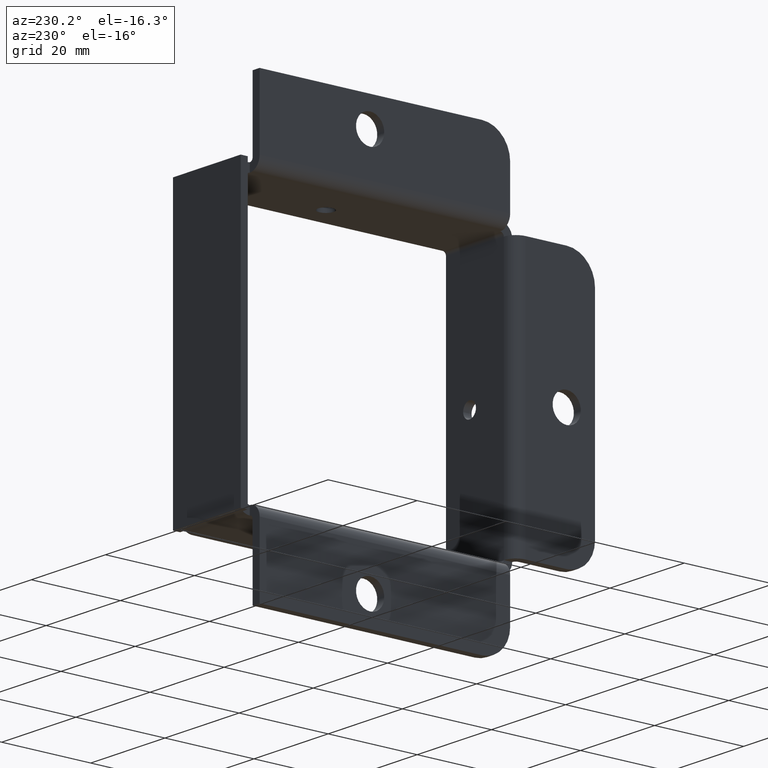
[diagram: clean part render]
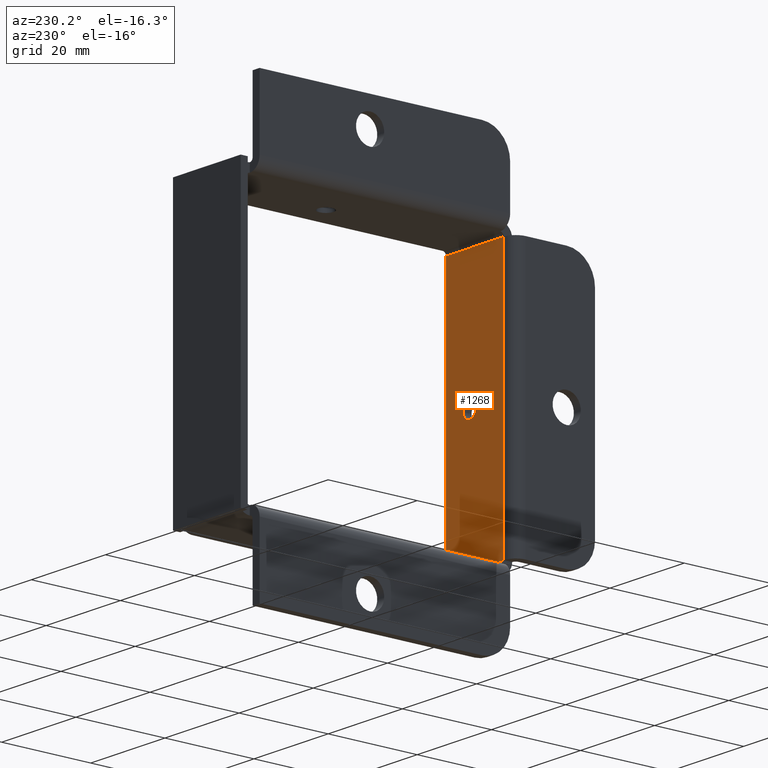
[diagram: same view with one face highlighted and labeled with its STEP entity id]
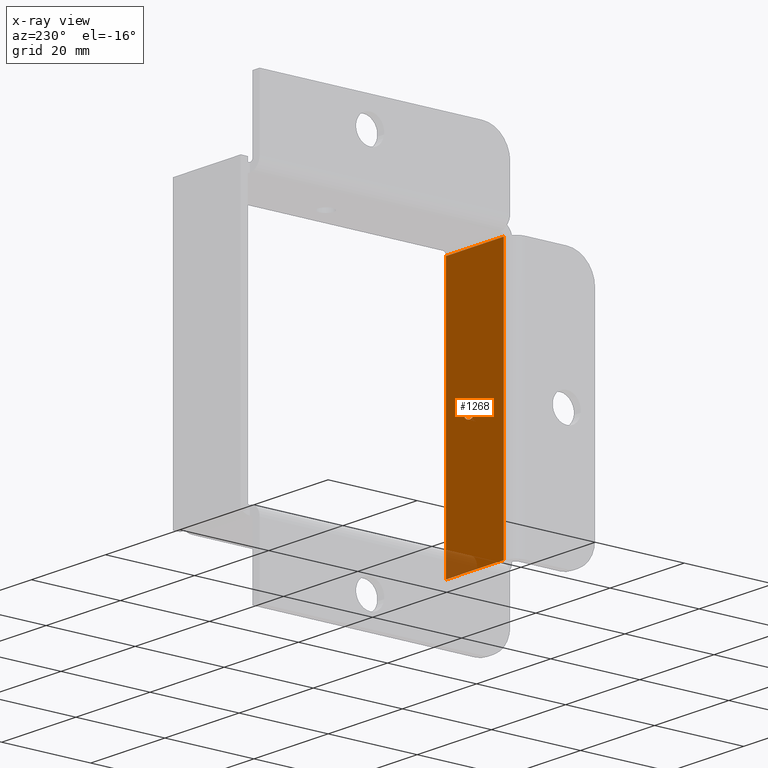
[diagram: x-ray of the same camera — body ghosted, the highlighted face saturated]
A machine part, auxiliary view. The second image highlights one B-rep face of the part: STEP entity #1268.
The next image is the same camera in x-ray: the body ghosted, the highlighted face saturated — about 3% of this face is hidden behind the body in this view.
In plain terms, the highlighted planar face has unit normal (0, -1, -0).
Its self-contained STEP definition (entity closure, byte-faithful):
#42=FACE_BOUND('',#276,.T.);
#43=CIRCLE('',#1285,0.068);
#182=FACE_OUTER_BOUND('',#275,.T.);
#275=EDGE_LOOP('',(#1034,#1035,#1036,#1037));
#276=EDGE_LOOP('',(#1038));
#337=LINE('',#1943,#447);
#355=LINE('',#2001,#465);
#358=LINE('',#2014,#468);
#381=LINE('',#2071,#491);
#447=VECTOR('',#1570,2.2895);
#465=VECTOR('',#1642,0.6135);
#468=VECTOR('',#1659,0.6135);
#491=VECTOR('',#1734,2.2895);
#517=VERTEX_POINT('',#1808);
#563=VERTEX_POINT('',#1940);
#564=VERTEX_POINT('',#1942);
#577=VERTEX_POINT('',#1999);
#580=VERTEX_POINT('',#2013);
#611=EDGE_CURVE('',#517,#517,#43,.T.);
#674=EDGE_CURVE('',#564,#563,#337,.T.);
#704=EDGE_CURVE('',#563,#577,#355,.T.);
#711=EDGE_CURVE('',#580,#564,#358,.T.);
#740=EDGE_CURVE('',#580,#577,#381,.T.);
#1034=ORIENTED_EDGE('',*,*,#674,.T.);
#1035=ORIENTED_EDGE('',*,*,#704,.T.);
#1036=ORIENTED_EDGE('',*,*,#740,.F.);
#1037=ORIENTED_EDGE('',*,*,#711,.T.);
#1038=ORIENTED_EDGE('',*,*,#611,.T.);
#1115=PLANE('',#1394);
#1268=ADVANCED_FACE('',(#182,#42),#1115,.F.);
#1285=AXIS2_PLACEMENT_3D('',#1809,#1434,#1435);
#1394=AXIS2_PLACEMENT_3D('',#2073,#1736,#1737);
#1434=DIRECTION('center_axis',(1.13921882087106E-19,-1.,-1.7156567753843E-15));
#1435=DIRECTION('ref_axis',(-1.,0.,-6.90683624096538E-35));
#1570=DIRECTION('',(0.,-1.7156567753843E-15,1.));
#1642=DIRECTION('',(1.,1.13921882087106E-19,1.95390210990238E-34));
#1659=DIRECTION('',(-1.,-1.13921882087106E-19,0.));
#1734=DIRECTION('',(0.,-1.77635683940025E-15,1.));
#1736=DIRECTION('center_axis',(1.13921882087106E-19,-1.,-1.7156567753843E-15));
#1737=DIRECTION('ref_axis',(1.,0.,0.));
#1808=CARTESIAN_POINT('',(0.140375,-1.139,-1.176));
#1809=CARTESIAN_POINT('Origin',(0.0723750000000001,-1.139,-1.176));
#1940=CARTESIAN_POINT('',(-0.291125,-1.139,-0.0312500000000001));
#1942=CARTESIAN_POINT('',(-0.291125,-1.139,-2.32075));
#1943=CARTESIAN_POINT('',(-0.291125,-1.139,-1.75651652809164));
#1999=CARTESIAN_POINT('',(0.322375,-1.139,-0.0312500000000001));
#2001=CARTESIAN_POINT('',(-8.5566725635625E-22,-1.139,-0.0312499999999999));
#2013=CARTESIAN_POINT('',(0.322375,-1.139,-2.32075));
#2014=CARTESIAN_POINT('',(-0.1611875,-1.139,-2.32075));
#2071=CARTESIAN_POINT('',(0.322375,-1.139,0.114117775266907));
#2073=CARTESIAN_POINT('Origin',(0.,-1.139,-1.19228305618327));